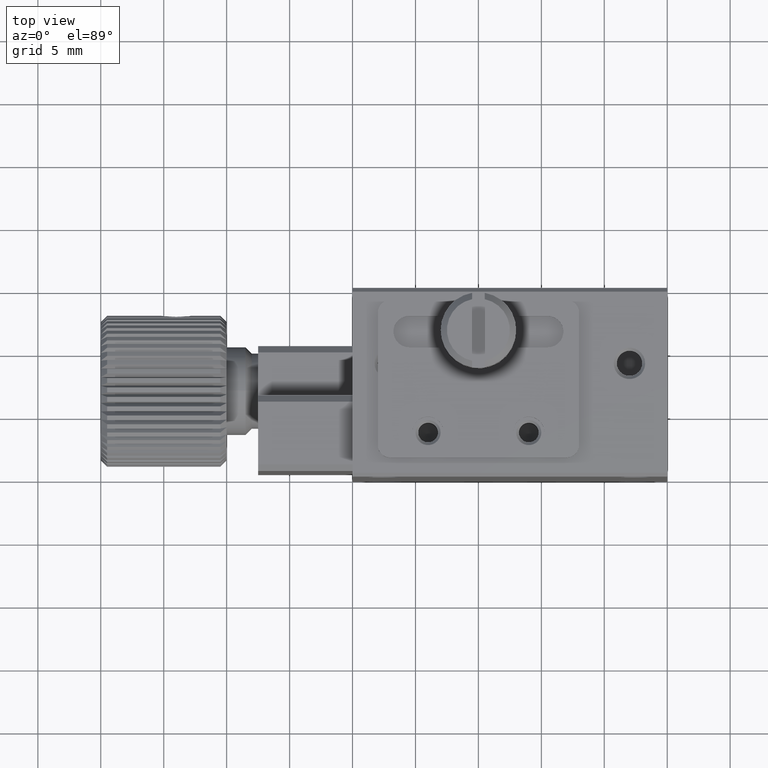
[diagram: clean part render]
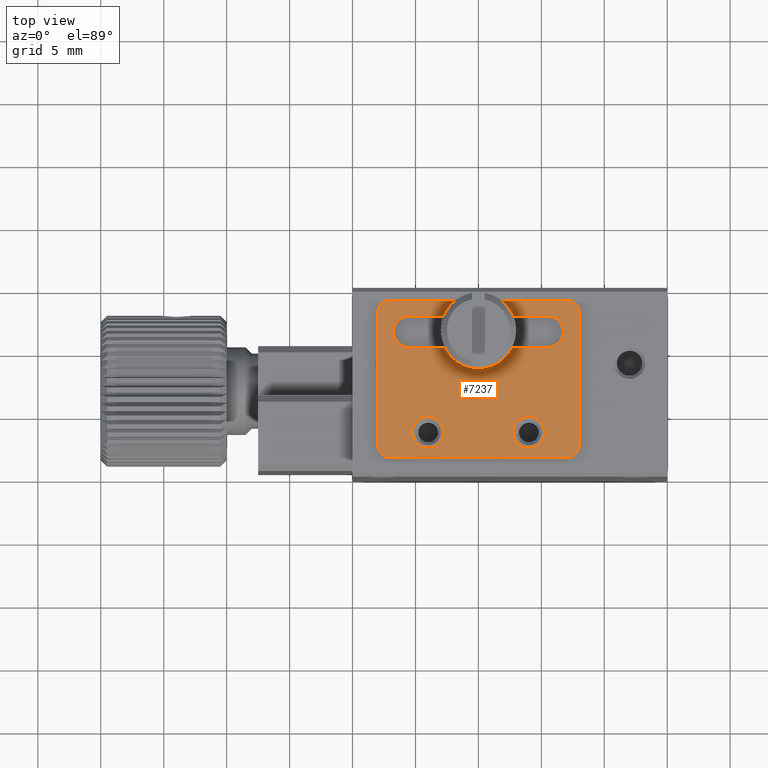
[diagram: same view with one face highlighted and labeled with its STEP entity id]
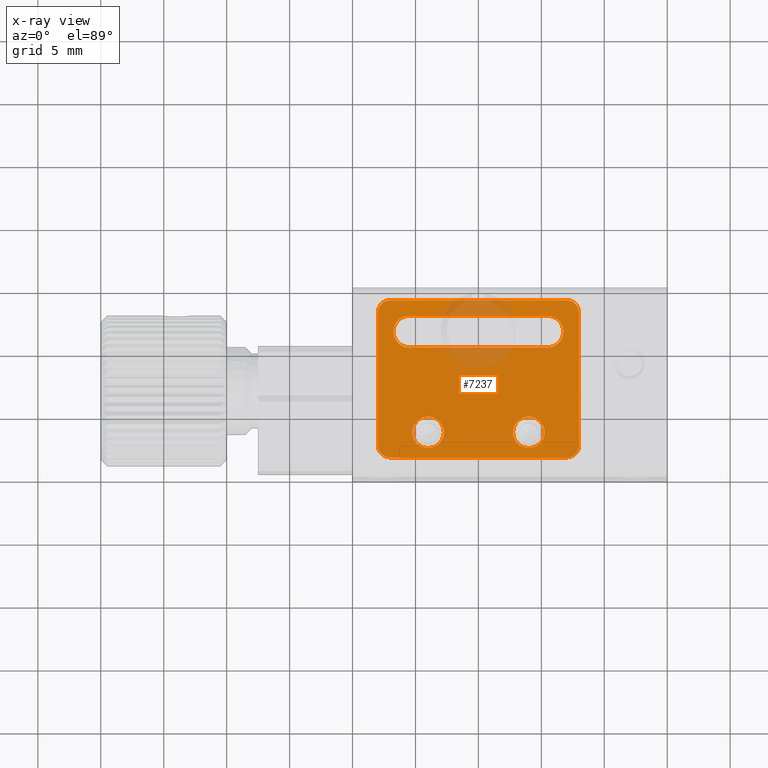
[diagram: x-ray of the same camera — body ghosted, the highlighted face saturated]
A machine part, top view. The second image highlights one B-rep face of the part: STEP entity #7237.
The next image is the same camera in x-ray: the body ghosted, the highlighted face saturated — about 8% of this face is hidden behind the body in this view.
In plain terms, the highlighted planar face has unit normal (0, 0, 1).
Its self-contained STEP definition (entity closure, byte-faithful):
#23 = VERTEX_POINT ( 'NONE', #8729 ) ;
#43 = CARTESIAN_POINT ( 'NONE',  ( 2.000000000000000000, 2.500000000000000444, 0.5000000000000000000 ) ) ;
#160 = CARTESIAN_POINT ( 'NONE',  ( 15.50000000000000000, 11.50000000000000000, 0.5000000000000000000 ) ) ;
#167 = VECTOR ( 'NONE', #4060, 1000.000000000000000 ) ;
#336 = CARTESIAN_POINT ( 'NONE',  ( 12.75000000000000178, 3.500000000000000000, 0.5000000000000000000 ) ) ;
#375 = CARTESIAN_POINT ( 'NONE',  ( 4.500000000000000888, 10.25000000000000000, 0.5000000000000000000 ) ) ;
#429 = VERTEX_POINT ( 'NONE', #6824 ) ;
#448 = EDGE_CURVE ( 'NONE', #4390, #4390, #1272, .T. ) ;
#465 = CARTESIAN_POINT ( 'NONE',  ( 3.000000000000000000, 10.25000000000000000, 0.5000000000000000000 ) ) ;
#910 = CARTESIAN_POINT ( 'NONE',  ( 6.000000000000000000, 3.500000000000000000, 0.5000000000000000000 ) ) ;
#923 = VERTEX_POINT ( 'NONE', #10605 ) ;
#989 = VERTEX_POINT ( 'NONE', #13052 ) ;
#1045 = AXIS2_PLACEMENT_3D ( 'NONE', #4687, #6810, #10751 ) ;
#1086 = EDGE_LOOP ( 'NONE', ( #1911 ) ) ;
#1272 = CIRCLE ( 'NONE', #1903, 1.249999999999999334 ) ;
#1321 = EDGE_CURVE ( 'NONE', #11313, #11313, #12513, .T. ) ;
#1432 = FACE_BOUND ( 'NONE', #3279, .T. ) ;
#1472 = DIRECTION ( 'NONE',  ( 0.000000000000000000, 0.000000000000000000, -1.000000000000000000 ) ) ;
#1831 = CARTESIAN_POINT ( 'NONE',  ( 2.000000000000000000, 13.00000000000000178, 0.5000000000000000000 ) ) ;
#1866 = VERTEX_POINT ( 'NONE', #43 ) ;
#1903 = AXIS2_PLACEMENT_3D ( 'NONE', #12886, #5902, #9833 ) ;
#1911 = ORIENTED_EDGE ( 'NONE', *, *, #448, .T. ) ;
#2008 = EDGE_CURVE ( 'NONE', #6329, #989, #3859, .T. ) ;
#2204 = ORIENTED_EDGE ( 'NONE', *, *, #2008, .T. ) ;
#2494 = EDGE_CURVE ( 'NONE', #12643, #923, #9859, .T. ) ;
#2546 = DIRECTION ( 'NONE',  ( 0.000000000000000000, 1.000000000000000000, -0.000000000000000000 ) ) ;
#2645 = CIRCLE ( 'NONE', #10033, 1.249999999999999334 ) ;
#2662 = DIRECTION ( 'NONE',  ( 1.000000000000000000, 0.000000000000000000, -0.000000000000000000 ) ) ;
#2899 = ORIENTED_EDGE ( 'NONE', *, *, #9543, .T. ) ;
#2948 = EDGE_CURVE ( 'NONE', #9502, #6040, #10577, .T. ) ;
#2970 = DIRECTION ( 'NONE',  ( 0.000000000000000000, -1.000000000000000000, -0.000000000000000000 ) ) ;
#3144 = EDGE_CURVE ( 'NONE', #4327, #9523, #5787, .T. ) ;
#3195 = CARTESIAN_POINT ( 'NONE',  ( 18.00000000000000355, 2.500000000000005329, 0.5000000000000000000 ) ) ;
#3279 = EDGE_LOOP ( 'NONE', ( #3660, #6900, #9476, #8157 ) ) ;
#3315 = CARTESIAN_POINT ( 'NONE',  ( 3.000000000000000000, 2.500000000000000000, 0.5000000000000000000 ) ) ;
#3335 = AXIS2_PLACEMENT_3D ( 'NONE', #3315, #12301, #11306 ) ;
#3385 = EDGE_LOOP ( 'NONE', ( #12934 ) ) ;
#3461 = CARTESIAN_POINT ( 'NONE',  ( 4.750000000000000000, 3.500000000000000000, 0.5000000000000000000 ) ) ;
#3660 = ORIENTED_EDGE ( 'NONE', *, *, #2948, .T. ) ;
#3859 = CIRCLE ( 'NONE', #9956, 1.000000000000000000 ) ;
#3924 = CARTESIAN_POINT ( 'NONE',  ( 17.00000000000000000, 14.00000000000000000, 0.5000000000000000000 ) ) ;
#4056 = ORIENTED_EDGE ( 'NONE', *, *, #10812, .T. ) ;
#4060 = DIRECTION ( 'NONE',  ( -1.000000000000000000, -0.000000000000000000, 0.000000000000000000 ) ) ;
#4124 = LINE ( 'NONE', #7228, #167 ) ;
#4212 = DIRECTION ( 'NONE',  ( 0.000000000000000000, 0.000000000000000000, -1.000000000000000000 ) ) ;
#4217 = CARTESIAN_POINT ( 'NONE',  ( 3.000000000000000000, 14.00000000000000178, 0.5000000000000000000 ) ) ;
#4327 = VERTEX_POINT ( 'NONE', #10364 ) ;
#4390 = VERTEX_POINT ( 'NONE', #336 ) ;
#4687 = CARTESIAN_POINT ( 'NONE',  ( 4.500000000000000888, 11.50000000000000000, 0.5000000000000000000 ) ) ;
#4724 = VECTOR ( 'NONE', #7742, 1000.000000000000000 ) ;
#5185 = EDGE_CURVE ( 'NONE', #923, #9502, #2645, .T. ) ;
#5208 = CIRCLE ( 'NONE', #9218, 1.000000000000011324 ) ;
#5342 = LINE ( 'NONE', #8365, #11579 ) ;
#5494 = CARTESIAN_POINT ( 'NONE',  ( 3.000000000000000000, 2.500000000000000000, 0.5000000000000000000 ) ) ;
#5625 = PLANE ( 'NONE',  #9632 ) ;
#5787 = CIRCLE ( 'NONE', #9338, 1.000000000000011324 ) ;
#5822 = EDGE_CURVE ( 'NONE', #23, #429, #6752, .T. ) ;
#5902 = DIRECTION ( 'NONE',  ( 0.000000000000000000, 0.000000000000000000, -1.000000000000000000 ) ) ;
#6040 = VERTEX_POINT ( 'NONE', #375 ) ;
#6329 = VERTEX_POINT ( 'NONE', #4217 ) ;
#6398 = EDGE_CURVE ( 'NONE', #12943, #429, #5208, .T. ) ;
#6752 = LINE ( 'NONE', #8832, #7323 ) ;
#6810 = DIRECTION ( 'NONE',  ( 0.000000000000000000, 0.000000000000000000, -1.000000000000000000 ) ) ;
#6819 = LINE ( 'NONE', #1831, #13033 ) ;
#6824 = CARTESIAN_POINT ( 'NONE',  ( 17.00000000000000000, 1.500000000000000222, 0.5000000000000000000 ) ) ;
#6832 = AXIS2_PLACEMENT_3D ( 'NONE', #910, #1472, #12824 ) ;
#6900 = ORIENTED_EDGE ( 'NONE', *, *, #8624, .T. ) ;
#7228 = CARTESIAN_POINT ( 'NONE',  ( 3.000000000000000000, 14.00000000000000000, 0.5000000000000000000 ) ) ;
#7237 = ADVANCED_FACE ( 'NONE', ( #12543, #9555, #10484, #1432 ), #5625, .T. ) ;
#7323 = VECTOR ( 'NONE', #11016, 1000.000000000000000 ) ;
#7589 = DIRECTION ( 'NONE',  ( -0.000000000000000000, -0.000000000000000000, 1.000000000000000000 ) ) ;
#7591 = DIRECTION ( 'NONE',  ( -1.000000000000000000, 0.000000000000000000, 0.000000000000000000 ) ) ;
#7596 = DIRECTION ( 'NONE',  ( 1.000000000000000000, 0.000000000000000000, -0.000000000000000000 ) ) ;
#7742 = DIRECTION ( 'NONE',  ( -1.000000000000000000, -0.000000000000000000, 0.000000000000000000 ) ) ;
#8157 = ORIENTED_EDGE ( 'NONE', *, *, #5185, .T. ) ;
#8240 = CARTESIAN_POINT ( 'NONE',  ( 4.500000000000000888, 12.75000000000000178, 0.5000000000000000000 ) ) ;
#8365 = CARTESIAN_POINT ( 'NONE',  ( 18.00000000000000355, 2.500000000000000000, 0.5000000000000000000 ) ) ;
#8429 = DIRECTION ( 'NONE',  ( 0.000000000000000000, 0.000000000000000000, -1.000000000000000000 ) ) ;
#8439 = DIRECTION ( 'NONE',  ( -1.000000000000000000, 0.000000000000000000, 0.000000000000000000 ) ) ;
#8536 = EDGE_LOOP ( 'NONE', ( #2899, #2204, #4056, #11386, #10180, #9606, #9603, #8879 ) ) ;
#8624 = EDGE_CURVE ( 'NONE', #6040, #12643, #10326, .T. ) ;
#8729 = CARTESIAN_POINT ( 'NONE',  ( 3.000000000000000000, 1.500000000000000000, 0.5000000000000000000 ) ) ;
#8797 = CARTESIAN_POINT ( 'NONE',  ( 3.000000000000000000, 12.75000000000000178, 0.5000000000000000000 ) ) ;
#8832 = CARTESIAN_POINT ( 'NONE',  ( 3.000000000000000000, 1.500000000000000000, 0.5000000000000000000 ) ) ;
#8879 = ORIENTED_EDGE ( 'NONE', *, *, #3144, .T. ) ;
#9016 = CIRCLE ( 'NONE', #3335, 0.9999999999999991118 ) ;
#9218 = AXIS2_PLACEMENT_3D ( 'NONE', #12526, #8429, #11398 ) ;
#9338 = AXIS2_PLACEMENT_3D ( 'NONE', #9550, #11344, #7591 ) ;
#9476 = ORIENTED_EDGE ( 'NONE', *, *, #2494, .T. ) ;
#9491 = DIRECTION ( 'NONE',  ( 0.000000000000000000, 0.000000000000000000, 1.000000000000000000 ) ) ;
#9502 = VERTEX_POINT ( 'NONE', #11181 ) ;
#9523 = VERTEX_POINT ( 'NONE', #3924 ) ;
#9543 = EDGE_CURVE ( 'NONE', #9523, #6329, #4124, .T. ) ;
#9550 = CARTESIAN_POINT ( 'NONE',  ( 17.00000000000000000, 13.00000000000000178, 0.5000000000000000000 ) ) ;
#9555 = FACE_BOUND ( 'NONE', #1086, .T. ) ;
#9591 = EDGE_CURVE ( 'NONE', #23, #1866, #9016, .T. ) ;
#9603 = ORIENTED_EDGE ( 'NONE', *, *, #11546, .T. ) ;
#9606 = ORIENTED_EDGE ( 'NONE', *, *, #6398, .F. ) ;
#9632 = AXIS2_PLACEMENT_3D ( 'NONE', #5494, #9491, #7596 ) ;
#9833 = DIRECTION ( 'NONE',  ( -1.000000000000000000, 0.000000000000000000, 0.000000000000000000 ) ) ;
#9859 = LINE ( 'NONE', #8797, #12092 ) ;
#9956 = AXIS2_PLACEMENT_3D ( 'NONE', #12603, #7589, #8439 ) ;
#10033 = AXIS2_PLACEMENT_3D ( 'NONE', #160, #4212, #12259 ) ;
#10180 = ORIENTED_EDGE ( 'NONE', *, *, #5822, .T. ) ;
#10326 = CIRCLE ( 'NONE', #1045, 1.250000000000000222 ) ;
#10364 = CARTESIAN_POINT ( 'NONE',  ( 18.00000000000001066, 13.00000000000000178, 0.5000000000000000000 ) ) ;
#10484 = FACE_BOUND ( 'NONE', #3385, .T. ) ;
#10577 = LINE ( 'NONE', #465, #4724 ) ;
#10605 = CARTESIAN_POINT ( 'NONE',  ( 15.50000000000000000, 12.75000000000000178, 0.5000000000000000000 ) ) ;
#10751 = DIRECTION ( 'NONE',  ( -1.000000000000000000, 0.000000000000000000, 0.000000000000000000 ) ) ;
#10812 = EDGE_CURVE ( 'NONE', #989, #1866, #6819, .T. ) ;
#11016 = DIRECTION ( 'NONE',  ( 1.000000000000000000, 0.000000000000000000, -0.000000000000000000 ) ) ;
#11181 = CARTESIAN_POINT ( 'NONE',  ( 15.50000000000000000, 10.25000000000000000, 0.5000000000000000000 ) ) ;
#11306 = DIRECTION ( 'NONE',  ( -1.000000000000000000, 0.000000000000000000, 0.000000000000000000 ) ) ;
#11313 = VERTEX_POINT ( 'NONE', #3461 ) ;
#11344 = DIRECTION ( 'NONE',  ( -0.000000000000000000, -0.000000000000000000, 1.000000000000000000 ) ) ;
#11386 = ORIENTED_EDGE ( 'NONE', *, *, #9591, .F. ) ;
#11398 = DIRECTION ( 'NONE',  ( -1.000000000000000000, 0.000000000000000000, 0.000000000000000000 ) ) ;
#11546 = EDGE_CURVE ( 'NONE', #12943, #4327, #5342, .T. ) ;
#11579 = VECTOR ( 'NONE', #2546, 1000.000000000000000 ) ;
#12092 = VECTOR ( 'NONE', #2662, 1000.000000000000000 ) ;
#12259 = DIRECTION ( 'NONE',  ( -1.000000000000000000, 0.000000000000000000, 0.000000000000000000 ) ) ;
#12301 = DIRECTION ( 'NONE',  ( 0.000000000000000000, 0.000000000000000000, -1.000000000000000000 ) ) ;
#12513 = CIRCLE ( 'NONE', #6832, 1.250000000000000222 ) ;
#12526 = CARTESIAN_POINT ( 'NONE',  ( 17.00000000000000000, 2.500000000000010658, 0.5000000000000000000 ) ) ;
#12543 = FACE_OUTER_BOUND ( 'NONE', #8536, .T. ) ;
#12603 = CARTESIAN_POINT ( 'NONE',  ( 3.000000000000000000, 13.00000000000000178, 0.5000000000000000000 ) ) ;
#12643 = VERTEX_POINT ( 'NONE', #8240 ) ;
#12824 = DIRECTION ( 'NONE',  ( -1.000000000000000000, 0.000000000000000000, 0.000000000000000000 ) ) ;
#12886 = CARTESIAN_POINT ( 'NONE',  ( 14.00000000000000000, 3.500000000000000000, 0.5000000000000000000 ) ) ;
#12934 = ORIENTED_EDGE ( 'NONE', *, *, #1321, .T. ) ;
#12943 = VERTEX_POINT ( 'NONE', #3195 ) ;
#13033 = VECTOR ( 'NONE', #2970, 1000.000000000000000 ) ;
#13052 = CARTESIAN_POINT ( 'NONE',  ( 2.000000000000000000, 13.00000000000000178, 0.5000000000000000000 ) ) ;